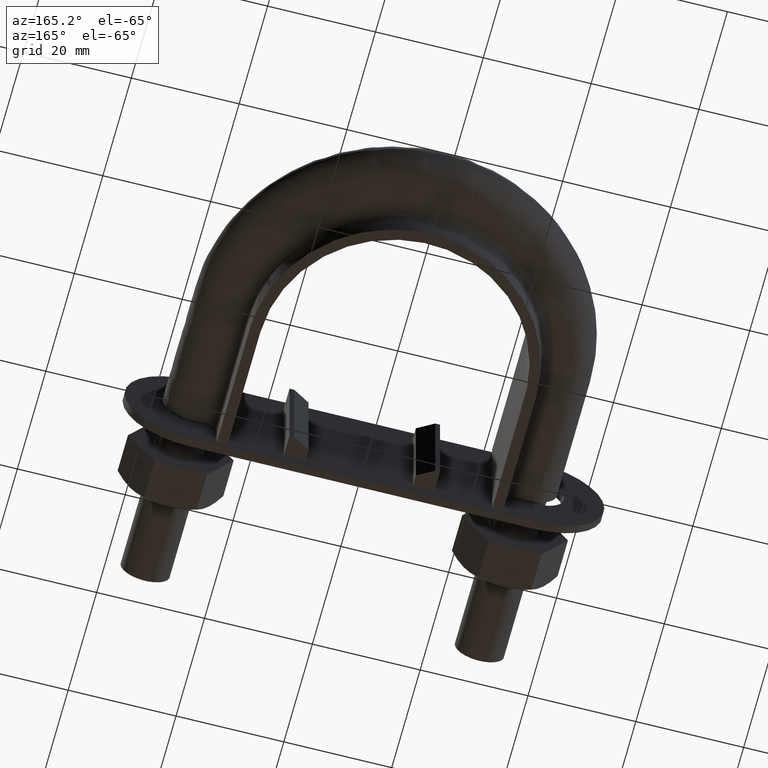
[diagram: clean part render]
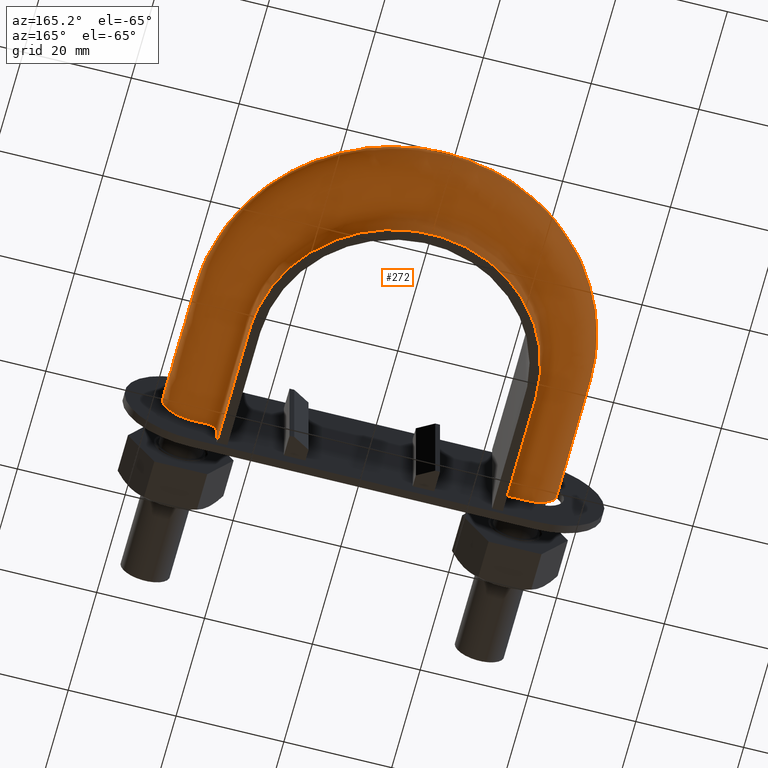
[diagram: same view with one face highlighted and labeled with its STEP entity id]
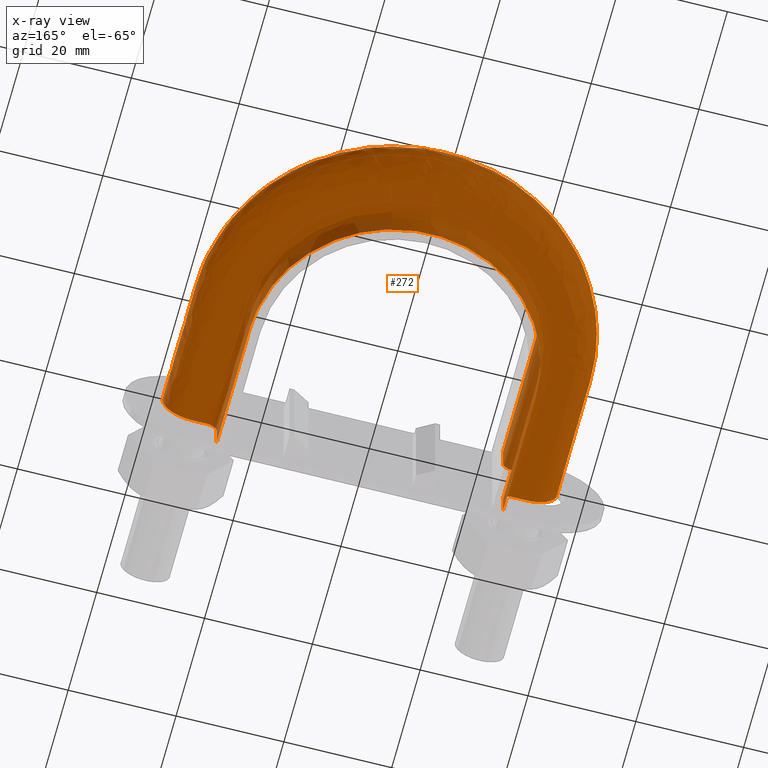
[diagram: x-ray of the same camera — body ghosted, the highlighted face saturated]
A machine part, auxiliary view. The second image highlights one B-rep face of the part: STEP entity #272.
The next image is the same camera in x-ray: the body ghosted, the highlighted face saturated — about 3% of this face is hidden behind the body in this view.
In plain terms, the highlighted face is a freeform B-spline surface patch.
Its self-contained STEP definition (entity closure, byte-faithful):
#272 = ADVANCED_FACE( '', ( #393 ), #394, .F. );
#393 = FACE_OUTER_BOUND( '', #651, .T. );
#394 = B_SPLINE_SURFACE_WITH_KNOTS( '', 3, 3, ( ( #652, #653, #654, #655, #656, #657, #658, #659, #660, #661, #662, #663, #664, #665, #666, #667, #668 ), ( #669, #670, #671, #672, #673, #674, #675, #676, #677, #678, #679, #680, #681, #682, #683, #684, #685 ), ( #686, #687, #688, #689, #690, #691, #692, #693, #694, #695, #696, #697, #698, #699, #700, #701, #702 ), ( #703, #704, #705, #706, #707, #708, #709, #710, #711, #712, #713, #714, #715, #716, #717, #718, #719 ), ( #720, #721, #722, #723, #724, #725, #726, #727, #728, #729, #730, #731, #732, #733, #734, #735, #736 ), ( #737, #738, #739, #740, #741, #742, #743, #744, #745, #746, #747, #748, #749, #750, #751, #752, #753 ), ( #754, #755, #756, #757, #758, #759, #760, #761, #762, #763, #764, #765, #766, #767, #768, #769, #770 ), ( #771, #772, #773, #774, #775, #776, #777, #778, #779, #780, #781, #782, #783, #784, #785, #786, #787 ), ( #788, #789, #790, #791, #792, #793, #794, #795, #796, #797, #798, #799, #800, #801, #802, #803, #804 ), ( #805, #806, #807, #808, #809, #810, #811, #812, #813, #814, #815, #816, #817, #818, #819, #820, #821 ), ( #822, #823, #824, #825, #826, #827, #828, #829, #830, #831, #832, #833, #834, #835, #836, #837, #838 ), ( #839, #840, #841, #842, #843, #844, #845, #846, #847, #848, #849, #850, #851, #852, #853, #854, #855 ), ( #856, #857, #858, #859, #860, #861, #862, #863, #864, #865, #866, #867, #868, #869, #870, #871, #872 ), ( #873, #874, #875, #876, #877, #878, #879, #880, #881, #882, #883, #884, #885, #886, #887, #888, #889 ), ( #890, #891, #892, #893, #894, #895, #896, #897, #898, #899, #900, #901, #902, #903, #904, #905, #906 ), ( #907, #908, #909, #910, #911, #912, #913, #914, #915, #916, #917, #918, #919, #920, #921, #922, #923 ), ( #924, #925, #926, #927, #928, #929, #930, #931, #932, #933, #934, #935, #936, #937, #938, #939, #940 ), ( #941, #942, #943, #944, #945, #946, #947, #948, #949, #950, #951, #952, #953, #954, #955, #956, #957 ), ( #958, #959, #960, #961, #962, #963, #964, #965, #966, #967, #968, #969, #970, #971, #972, #973, #974 ), ( #975, #976, #977, #978, #979, #980, #981, #982, #983, #984, #985, #986, #987, #988, #989, #990, #991 ), ( #992, #993, #994, #995, #996, #997, #998, #999, #1000, #1001, #1002, #1003, #1004, #1005, #1006, #1007, #1008 ), ( #1009, #1010, #1011, #1012, #1013, #1014, #1015, #1016, #1017, #1018, #1019, #1020, #1021, #1022, #1023, #1024, #1025 ), ( #1026, #1027, #1028, #1029, #1030, #1031, #1032, #1033, #1034, #1035, #1036, #1037, #1038, #1039, #1040, #1041, #1042 ), ( #1043, #1044, #1045, #1046, #1047, #1048, #1049, #1050, #1051, #1052, #1053, #1054, #1055, #1056, #1057, #1058, #1059 ), ( #1060, #1061, #1062, #1063, #1064, #1065, #1066, #1067, #1068, #1069, #1070, #1071, #1072, #1073, #1074, #1075, #1076 ), ( #1077, #1078, #1079, #1080, #1081, #1082, #1083, #1084, #1085, #1086, #1087, #1088, #1089, #1090, #1091, #1092, #1093 ), ( #1094, #1095, #1096, #1097, #1098, #1099, #1100, #1101, #1102, #1103, #1104, #1105, #1106, #1107, #1108, #1109, #1110 ), ( #1111, #1112, #1113, #1114, #1115, #1116, #1117, #1118, #1119, #1120, #1121, #1122, #1123, #1124, #1125, #1126, #1127 ), ( #1128, #1129, #1130, #1131, #1132, #1133, #1134, #1135, #1136, #1137, #1138, #1139, #1140, #1141, #1142, #1143, #1144 ), ( #1145, #1146, #1147, #1148, #1149, #1150, #1151, #1152, #1153, #1154, #1155, #1156, #1157, #1158, #1159, #1160, #1161 ), ( #1162, #1163, #1164, #1165, #1166, #1167, #1168, #1169, #1170, #1171, #1172, #1173, #1174, #1175, #1176, #1177, #1178 ) ), .UNSPECIFIED., .F., .F., .F., ( 4, 3, 1, 1, 1, 3, 3, 1, 1, 1, 3, 3, 1, 1, 1, 3, 4 ), ( 4, 3, 1, 1, 1, 1, 1, 1, 1, 3, 4 ), ( 0.000000000000000, 0.0526315789473684, 0.105263157894737, 0.157894736842105, 0.210526315789474, 0.263157894736842, 0.315789473684211, 0.368421052631579, 0.421052631578947, 0.473684210526316, 0.526315789473684, 0.578947368421053, 0.631578947368421, 0.684210526315789, 0.736842105263158, 0.789473684210526, 0.842105263157895 ), ( 0.000000000000000, 1.00000000000000, 1.50000000000000, 2.00000000000000, 3.00000000000000, 4.00000000000000, 5.00000000000000, 6.00000000000000, 6.50000000000000, 7.00000000000000, 8.00000000000000 ), .UNSPECIFIED. );
#651 = EDGE_LOOP( '', ( #1772, #1773, #1774, #1775 ) );
#652 = CARTESIAN_POINT( '', ( -26.5500000000000, 29.3500000000000, 12.5000000000000 ) );
#653 = CARTESIAN_POINT( '', ( -26.5500000000000, 38.3833333333333, 12.5000000000000 ) );
#654 = CARTESIAN_POINT( '', ( -26.5500000000000, 47.4166666666667, 12.5000000000000 ) );
#655 = CARTESIAN_POINT( '', ( -26.5500000000000, 56.4500000000000, 12.5000000000000 ) );
#656 = CARTESIAN_POINT( '', ( -26.5500000000000, 58.7566352991258, 12.5000000000000 ) );
#657 = CARTESIAN_POINT( '', ( -25.9278217826460, 63.4015410955847, 12.5000000000000 ) );
#658 = CARTESIAN_POINT( '', ( -22.3733615438456, 72.0387447403505, 12.5000000000000 ) );
#659 = CARTESIAN_POINT( '', ( -13.8952542493119, 80.5185918589213, 12.5000000000000 ) );
#660 = CARTESIAN_POINT( '', ( 1.76887449184267E-014, 84.2407040705393, 12.5000000000000 ) );
#661 = CARTESIAN_POINT( '', ( 13.8952542493119, 80.5185918589213, 12.5000000000000 ) );
#662 = CARTESIAN_POINT( '', ( 22.3733615438457, 72.0387447403505, 12.5000000000000 ) );
#663 = CARTESIAN_POINT( '', ( 25.9278217826460, 63.4015410955847, 12.5000000000000 ) );
#664 = CARTESIAN_POINT( '', ( 26.5500000000000, 58.7566352991258, 12.5000000000000 ) );
#665 = CARTESIAN_POINT( '', ( 26.5500000000000, 56.4500000000000, 12.5000000000000 ) );
#666 = CARTESIAN_POINT( '', ( 26.5500000000000, 47.4166666666667, 12.5000000000000 ) );
#667 = CARTESIAN_POINT( '', ( 26.5500000000000, 38.3833333333333, 12.5000000000000 ) );
#668 = CARTESIAN_POINT( '', ( 26.5500000000000, 29.3500000000000, 12.5000000000000 ) );
#669 = CARTESIAN_POINT( '', ( -26.5500000000000, 29.3500000000000, 10.8666666666667 ) );
#670 = CARTESIAN_POINT( '', ( -26.5500000000000, 38.3833333333333, 10.8666666666667 ) );
#671 = CARTESIAN_POINT( '', ( -26.5500000000000, 47.4166666666667, 10.8666666666667 ) );
#672 = CARTESIAN_POINT( '', ( -26.5500000000000, 56.4500000000000, 10.8666666666667 ) );
#673 = CARTESIAN_POINT( '', ( -26.5500000000000, 58.7566352991258, 10.8666666666667 ) );
#674 = CARTESIAN_POINT( '', ( -25.9278217826460, 63.4015410955847, 10.8666666666667 ) );
#675 = CARTESIAN_POINT( '', ( -22.3733615438456, 72.0387447403505, 10.8666666666667 ) );
#676 = CARTESIAN_POINT( '', ( -13.8952542493119, 80.5185918589213, 10.8666666666667 ) );
#677 = CARTESIAN_POINT( '', ( 1.94234683944035E-014, 84.2407040705393, 10.8666666666667 ) );
#678 = CARTESIAN_POINT( '', ( 13.8952542493119, 80.5185918589213, 10.8666666666667 ) );
#679 = CARTESIAN_POINT( '', ( 22.3733615438457, 72.0387447403505, 10.8666666666667 ) );
#680 = CARTESIAN_POINT( '', ( 25.9278217826460, 63.4015410955847, 10.8666666666667 ) );
#681 = CARTESIAN_POINT( '', ( 26.5500000000000, 58.7566352991258, 10.8666666666667 ) );
#682 = CARTESIAN_POINT( '', ( 26.5500000000000, 56.4500000000000, 10.8666666666667 ) );
#683 = CARTESIAN_POINT( '', ( 26.5500000000000, 47.4166666666667, 10.8666666666667 ) );
#684 = CARTESIAN_POINT( '', ( 26.5500000000000, 38.3833333333333, 10.8666666666667 ) );
#685 = CARTESIAN_POINT( '', ( 26.5500000000000, 29.3500000000000, 10.8666666666667 ) );
#686 = CARTESIAN_POINT( '', ( -26.5500000000000, 29.3500000000000, 9.23333333333333 ) );
#687 = CARTESIAN_POINT( '', ( -26.5500000000000, 38.3833333333333, 9.23333333333333 ) );
#688 = CARTESIAN_POINT( '', ( -26.5500000000000, 47.4166666666667, 9.23333333333333 ) );
#689 = CARTESIAN_POINT( '', ( -26.5500000000000, 56.4500000000000, 9.23333333333333 ) );
#690 = CARTESIAN_POINT( '', ( -26.5500000000000, 58.7566352991258, 9.23333333333333 ) );
#691 = CARTESIAN_POINT( '', ( -25.9278217826460, 63.4015410955847, 9.23333333333332 ) );
#692 = CARTESIAN_POINT( '', ( -22.3733615438456, 72.0387447403505, 9.23333333333335 ) );
#693 = CARTESIAN_POINT( '', ( -13.8952542493119, 80.5185918589213, 9.23333333333332 ) );
#694 = CARTESIAN_POINT( '', ( 1.89897875254093E-014, 84.2407040705393, 9.23333333333334 ) );
#695 = CARTESIAN_POINT( '', ( 13.8952542493119, 80.5185918589213, 9.23333333333332 ) );
#696 = CARTESIAN_POINT( '', ( 22.3733615438457, 72.0387447403505, 9.23333333333334 ) );
#697 = CARTESIAN_POINT( '', ( 25.9278217826460, 63.4015410955847, 9.23333333333333 ) );
#698 = CARTESIAN_POINT( '', ( 26.5500000000000, 58.7566352991258, 9.23333333333333 ) );
#699 = CARTESIAN_POINT( '', ( 26.5500000000000, 56.4500000000000, 9.23333333333333 ) );
#700 = CARTESIAN_POINT( '', ( 26.5500000000000, 47.4166666666667, 9.23333333333333 ) );
#701 = CARTESIAN_POINT( '', ( 26.5500000000000, 38.3833333333333, 9.23333333333333 ) );
#702 = CARTESIAN_POINT( '', ( 26.5500000000000, 29.3500000000000, 9.23333333333333 ) );
#703 = CARTESIAN_POINT( '', ( -26.5500000000000, 29.3500000000000, 7.59999999999999 ) );
#704 = CARTESIAN_POINT( '', ( -26.5500000000000, 38.3833333333333, 7.59999999999999 ) );
#705 = CARTESIAN_POINT( '', ( -26.5500000000000, 47.4166666666667, 7.59999999999999 ) );
#706 = CARTESIAN_POINT( '', ( -26.5500000000000, 56.4500000000000, 7.59999999999999 ) );
#707 = CARTESIAN_POINT( '', ( -26.5500000000000, 58.7566352991258, 7.60000000000000 ) );
#708 = CARTESIAN_POINT( '', ( -25.9278217826459, 63.4015410955847, 7.59999999999998 ) );
#709 = CARTESIAN_POINT( '', ( -22.3733615438456, 72.0387447403505, 7.60000000000001 ) );
#710 = CARTESIAN_POINT( '', ( -13.8952542493119, 80.5185918589213, 7.59999999999999 ) );
#711 = CARTESIAN_POINT( '', ( 1.98571492633977E-014, 84.2407040705393, 7.60000000000000 ) );
#712 = CARTESIAN_POINT( '', ( 13.8952542493119, 80.5185918589213, 7.59999999999999 ) );
#713 = CARTESIAN_POINT( '', ( 22.3733615438457, 72.0387447403505, 7.60000000000000 ) );
#714 = CARTESIAN_POINT( '', ( 25.9278217826460, 63.4015410955847, 7.59999999999999 ) );
#715 = CARTESIAN_POINT( '', ( 26.5500000000000, 58.7566352991258, 7.60000000000000 ) );
#716 = CARTESIAN_POINT( '', ( 26.5500000000000, 56.4500000000000, 7.60000000000000 ) );
#717 = CARTESIAN_POINT( '', ( 26.5500000000000, 47.4166666666667, 7.59999999999999 ) );
#718 = CARTESIAN_POINT( '', ( 26.5500000000000, 38.3833333333333, 7.59999999999999 ) );
#719 = CARTESIAN_POINT( '', ( 26.5500000000000, 29.3500000000000, 7.59999999999999 ) );
#720 = CARTESIAN_POINT( '', ( -26.5500000000000, 29.3500000000000, 7.33823584172332 ) );
#721 = CARTESIAN_POINT( '', ( -26.5500000000000, 38.3833333333333, 7.33823584172332 ) );
#722 = CARTESIAN_POINT( '', ( -26.5500000000000, 47.4166666666667, 7.33823584172332 ) );
#723 = CARTESIAN_POINT( '', ( -26.5500000000000, 56.4500000000000, 7.33823584172332 ) );
#724 = CARTESIAN_POINT( '', ( -26.5500000000000, 58.7566352991258, 7.33823584172333 ) );
#725 = CARTESIAN_POINT( '', ( -25.9278217826460, 63.4015410955847, 7.33823584172332 ) );
#726 = CARTESIAN_POINT( '', ( -22.3733615438456, 72.0387447403505, 7.33823584172334 ) );
#727 = CARTESIAN_POINT( '', ( -13.8952542493119, 80.5185918589213, 7.33823584172332 ) );
#728 = CARTESIAN_POINT( '', ( 1.76887449184267E-014, 84.2407040705393, 7.33823584172333 ) );
#729 = CARTESIAN_POINT( '', ( 13.8952542493119, 80.5185918589213, 7.33823584172332 ) );
#730 = CARTESIAN_POINT( '', ( 22.3733615438457, 72.0387447403505, 7.33823584172333 ) );
#731 = CARTESIAN_POINT( '', ( 25.9278217826460, 63.4015410955847, 7.33823584172332 ) );
#732 = CARTESIAN_POINT( '', ( 26.5500000000000, 58.7566352991258, 7.33823584172333 ) );
#733 = CARTESIAN_POINT( '', ( 26.5500000000000, 56.4500000000000, 7.33823584172333 ) );
#734 = CARTESIAN_POINT( '', ( 26.5500000000000, 47.4166666666667, 7.33823584172332 ) );
#735 = CARTESIAN_POINT( '', ( 26.5500000000000, 38.3833333333333, 7.33823584172332 ) );
#736 = CARTESIAN_POINT( '', ( 26.5500000000000, 29.3500000000000, 7.33823584172332 ) );
#737 = CARTESIAN_POINT( '', ( -26.6541362568359, 29.3500000000000, 6.81470752517000 ) );
#738 = CARTESIAN_POINT( '', ( -26.6541362568359, 38.3833333333333, 6.81470752517000 ) );
#739 = CARTESIAN_POINT( '', ( -26.6541362568359, 47.4166666666667, 6.81470752517000 ) );
#740 = CARTESIAN_POINT( '', ( -26.6541362568359, 56.4500000000000, 6.81470752517000 ) );
#741 = CARTESIAN_POINT( '', ( -26.6541362568359, 58.7659363744331, 6.81470752517000 ) );
#742 = CARTESIAN_POINT( '', ( -26.0295621710036, 63.4287040133886, 6.81470752516999 ) );
#743 = CARTESIAN_POINT( '', ( -22.4610902878325, 72.0999475731550, 6.81470752517001 ) );
#744 = CARTESIAN_POINT( '', ( -13.9497632697654, 80.6129737009305, 6.81470752516999 ) );
#745 = CARTESIAN_POINT( '', ( 1.98704991214949E-014, 84.3497175347886, 6.81470752517001 ) );
#746 = CARTESIAN_POINT( '', ( 13.9497632697655, 80.6129737009305, 6.81470752516999 ) );
#747 = CARTESIAN_POINT( '', ( 22.4610902878326, 72.0999475731550, 6.81470752517000 ) );
#748 = CARTESIAN_POINT( '', ( 26.0295621710036, 63.4287040133886, 6.81470752516999 ) );
#749 = CARTESIAN_POINT( '', ( 26.6541362568359, 58.7659363744331, 6.81470752517000 ) );
#750 = CARTESIAN_POINT( '', ( 26.6541362568359, 56.4500000000000, 6.81470752517000 ) );
#751 = CARTESIAN_POINT( '', ( 26.6541362568359, 47.4166666666667, 6.81470752517000 ) );
#752 = CARTESIAN_POINT( '', ( 26.6541362568359, 38.3833333333333, 6.81470752517000 ) );
#753 = CARTESIAN_POINT( '', ( 26.6541362568359, 29.3500000000000, 6.81470752517000 ) );
#754 = CARTESIAN_POINT( '', ( -27.0989687109389, 29.3500000000000, 6.14896871093887 ) );
#755 = CARTESIAN_POINT( '', ( -27.0989687109389, 38.3833333333333, 6.14896871093887 ) );
#756 = CARTESIAN_POINT( '', ( -27.0989687109389, 47.4166666666667, 6.14896871093887 ) );
#757 = CARTESIAN_POINT( '', ( -27.0989687109389, 56.4500000000000, 6.14896871093887 ) );
#758 = CARTESIAN_POINT( '', ( -27.0989687109389, 58.8056672067145, 6.14896871093887 ) );
#759 = CARTESIAN_POINT( '', ( -26.4641603408403, 63.5447341815013, 6.14896871093886 ) );
#760 = CARTESIAN_POINT( '', ( -22.8358357767600, 72.3613839560413, 6.14896871093888 ) );
#761 = CARTESIAN_POINT( '', ( -14.1826061054485, 81.0161388201631, 6.14896871093886 ) );
#762 = CARTESIAN_POINT( '', ( 1.99275248906145E-014, 84.8153836563267, 6.14896871093887 ) );
#763 = CARTESIAN_POINT( '', ( 14.1826061054486, 81.0161388201631, 6.14896871093886 ) );
#764 = CARTESIAN_POINT( '', ( 22.8358357767601, 72.3613839560413, 6.14896871093887 ) );
#765 = CARTESIAN_POINT( '', ( 26.4641603408403, 63.5447341815013, 6.14896871093886 ) );
#766 = CARTESIAN_POINT( '', ( 27.0989687109389, 58.8056672067145, 6.14896871093887 ) );
#767 = CARTESIAN_POINT( '', ( 27.0989687109389, 56.4500000000000, 6.14896871093887 ) );
#768 = CARTESIAN_POINT( '', ( 27.0989687109389, 47.4166666666666, 6.14896871093887 ) );
#769 = CARTESIAN_POINT( '', ( 27.0989687109389, 38.3833333333333, 6.14896871093887 ) );
#770 = CARTESIAN_POINT( '', ( 27.0989687109389, 29.3500000000000, 6.14896871093887 ) );
#771 = CARTESIAN_POINT( '', ( -27.7647075251700, 29.3500000000000, 5.70413625683590 ) );
#772 = CARTESIAN_POINT( '', ( -27.7647075251700, 38.3833333333333, 5.70413625683590 ) );
#773 = CARTESIAN_POINT( '', ( -27.7647075251700, 47.4166666666667, 5.70413625683590 ) );
#774 = CARTESIAN_POINT( '', ( -27.7647075251700, 56.4500000000000, 5.70413625683590 ) );
#775 = CARTESIAN_POINT( '', ( -27.7647075251700, 58.8651285992622, 5.70413625683590 ) );
#776 = CARTESIAN_POINT( '', ( -27.1145824662617, 63.7183855997418, 5.70413625683589 ) );
#777 = CARTESIAN_POINT( '', ( -23.3966820350219, 72.7526511532393, 5.70413625683591 ) );
#778 = CARTESIAN_POINT( '', ( -14.5310800351273, 81.6195180609124, 5.70413625683589 ) );
#779 = CARTESIAN_POINT( '', ( 2.00128699852992E-014, 85.5123022572988, 5.70413625683590 ) );
#780 = CARTESIAN_POINT( '', ( 14.5310800351273, 81.6195180609124, 5.70413625683589 ) );
#781 = CARTESIAN_POINT( '', ( 23.3966820350219, 72.7526511532393, 5.70413625683590 ) );
#782 = CARTESIAN_POINT( '', ( 27.1145824662618, 63.7183855997417, 5.70413625683589 ) );
#783 = CARTESIAN_POINT( '', ( 27.7647075251700, 58.8651285992622, 5.70413625683590 ) );
#784 = CARTESIAN_POINT( '', ( 27.7647075251700, 56.4500000000000, 5.70413625683590 ) );
#785 = CARTESIAN_POINT( '', ( 27.7647075251700, 47.4166666666666, 5.70413625683590 ) );
#786 = CARTESIAN_POINT( '', ( 27.7647075251700, 38.3833333333333, 5.70413625683590 ) );
#787 = CARTESIAN_POINT( '', ( 27.7647075251700, 29.3500000000000, 5.70413625683590 ) );
#788 = CARTESIAN_POINT( '', ( -28.2882358417233, 29.3500000000000, 5.59999999999999 ) );
#789 = CARTESIAN_POINT( '', ( -28.2882358417233, 38.3833333333333, 5.59999999999999 ) );
#790 = CARTESIAN_POINT( '', ( -28.2882358417233, 47.4166666666667, 5.59999999999999 ) );
#791 = CARTESIAN_POINT( '', ( -28.2882358417233, 56.4500000000000, 5.59999999999999 ) );
#792 = CARTESIAN_POINT( '', ( -28.2882358417233, 58.9118882624740, 5.59999999999999 ) );
#793 = CARTESIAN_POINT( '', ( -27.6260659385964, 63.8549428091386, 5.59999999999998 ) );
#794 = CARTESIAN_POINT( '', ( -23.8377242142617, 73.0603385716275, 5.60000000000000 ) );
#795 = CARTESIAN_POINT( '', ( -14.8051153863305, 82.0940076225846, 5.59999999999998 ) );
#796 = CARTESIAN_POINT( '', ( 2.26820694680907E-014, 86.0603499512927, 5.60000000000000 ) );
#797 = CARTESIAN_POINT( '', ( 14.8051153863305, 82.0940076225846, 5.59999999999998 ) );
#798 = CARTESIAN_POINT( '', ( 23.8377242142617, 73.0603385716275, 5.59999999999999 ) );
#799 = CARTESIAN_POINT( '', ( 27.6260659385964, 63.8549428091385, 5.59999999999999 ) );
#800 = CARTESIAN_POINT( '', ( 28.2882358417233, 58.9118882624740, 5.59999999999999 ) );
#801 = CARTESIAN_POINT( '', ( 28.2882358417233, 56.4500000000000, 5.59999999999999 ) );
#802 = CARTESIAN_POINT( '', ( 28.2882358417233, 47.4166666666666, 5.59999999999999 ) );
#803 = CARTESIAN_POINT( '', ( 28.2882358417233, 38.3833333333333, 5.59999999999999 ) );
#804 = CARTESIAN_POINT( '', ( 28.2882358417233, 29.3500000000000, 5.59999999999999 ) );
#805 = CARTESIAN_POINT( '', ( -28.5500000000000, 29.3500000000000, 5.59999999999999 ) );
#806 = CARTESIAN_POINT( '', ( -28.5500000000000, 38.3833333333333, 5.59999999999999 ) );
#807 = CARTESIAN_POINT( '', ( -28.5500000000000, 47.4166666666667, 5.59999999999999 ) );
#808 = CARTESIAN_POINT( '', ( -28.5500000000000, 56.4500000000000, 5.59999999999999 ) );
#809 = CARTESIAN_POINT( '', ( -28.5500000000000, 58.9352680940799, 5.59999999999999 ) );
#810 = CARTESIAN_POINT( '', ( -27.8818076747638, 63.9232214138370, 5.59999999999998 ) );
#811 = CARTESIAN_POINT( '', ( -24.0582453038816, 73.2141822808216, 5.60000000000000 ) );
#812 = CARTESIAN_POINT( '', ( -14.9421330619321, 82.3312524034207, 5.59999999999998 ) );
#813 = CARTESIAN_POINT( '', ( 2.01135413885386E-014, 86.3343737982896, 5.60000000000000 ) );
#814 = CARTESIAN_POINT( '', ( 14.9421330619321, 82.3312524034207, 5.59999999999998 ) );
#815 = CARTESIAN_POINT( '', ( 24.0582453038817, 73.2141822808216, 5.59999999999999 ) );
#816 = CARTESIAN_POINT( '', ( 27.8818076747638, 63.9232214138369, 5.59999999999999 ) );
#817 = CARTESIAN_POINT( '', ( 28.5500000000000, 58.9352680940799, 5.59999999999999 ) );
#818 = CARTESIAN_POINT( '', ( 28.5500000000000, 56.4500000000000, 5.59999999999999 ) );
#819 = CARTESIAN_POINT( '', ( 28.5500000000000, 47.4166666666666, 5.59999999999999 ) );
#820 = CARTESIAN_POINT( '', ( 28.5500000000000, 38.3833333333333, 5.59999999999999 ) );
#821 = CARTESIAN_POINT( '', ( 28.5500000000000, 29.3500000000000, 5.59999999999999 ) );
#822 = CARTESIAN_POINT( '', ( -29.3666666666667, 29.3500000000000, 5.60000000000001 ) );
#823 = CARTESIAN_POINT( '', ( -29.3666666666667, 38.3833333333333, 5.60000000000001 ) );
#824 = CARTESIAN_POINT( '', ( -29.3666666666667, 47.4166666666667, 5.60000000000001 ) );
#825 = CARTESIAN_POINT( '', ( -29.3666666666667, 56.4500000000000, 5.60000000000001 ) );
#826 = CARTESIAN_POINT( '', ( -29.3666666666667, 59.0082098186861, 5.60000000000001 ) );
#827 = CARTESIAN_POINT( '', ( -28.6796852473785, 64.1362408771233, 5.60000000000000 ) );
#828 = CARTESIAN_POINT( '', ( -24.7462395058963, 73.6941526098473, 5.60000000000002 ) );
#829 = CARTESIAN_POINT( '', ( -15.3696085770854, 83.0714221257580, 5.60000000000000 ) );
#830 = CARTESIAN_POINT( '', ( 1.76161496256726E-014, 87.1892889371210, 5.60000000000001 ) );
#831 = CARTESIAN_POINT( '', ( 15.3696085770854, 83.0714221257580, 5.60000000000000 ) );
#832 = CARTESIAN_POINT( '', ( 24.7462395058964, 73.6941526098472, 5.60000000000001 ) );
#833 = CARTESIAN_POINT( '', ( 28.6796852473786, 64.1362408771233, 5.60000000000000 ) );
#834 = CARTESIAN_POINT( '', ( 29.3666666666667, 59.0082098186861, 5.60000000000001 ) );
#835 = CARTESIAN_POINT( '', ( 29.3666666666667, 56.4500000000000, 5.60000000000001 ) );
#836 = CARTESIAN_POINT( '', ( 29.3666666666667, 47.4166666666666, 5.60000000000001 ) );
#837 = CARTESIAN_POINT( '', ( 29.3666666666667, 38.3833333333333, 5.60000000000001 ) );
#838 = CARTESIAN_POINT( '', ( 29.3666666666667, 29.3500000000000, 5.60000000000001 ) );
#839 = CARTESIAN_POINT( '', ( -30.1833333333333, 29.3500000000000, 5.60000000000001 ) );
#840 = CARTESIAN_POINT( '', ( -30.1833333333333, 38.3833333333333, 5.60000000000001 ) );
#841 = CARTESIAN_POINT( '', ( -30.1833333333333, 47.4166666666667, 5.60000000000001 ) );
#842 = CARTESIAN_POINT( '', ( -30.1833333333333, 56.4500000000000, 5.60000000000001 ) );
#843 = CARTESIAN_POINT( '', ( -30.1833333333333, 59.0811515432924, 5.60000000000001 ) );
#844 = CARTESIAN_POINT( '', ( -29.4775628199933, 64.3492603404096, 5.60000000000000 ) );
#845 = CARTESIAN_POINT( '', ( -25.4342337079110, 74.1741229388729, 5.60000000000002 ) );
#846 = CARTESIAN_POINT( '', ( -15.7970840922386, 83.8115918480952, 5.60000000000000 ) );
#847 = CARTESIAN_POINT( '', ( 1.77208430767718E-014, 88.0442040759524, 5.60000000000001 ) );
#848 = CARTESIAN_POINT( '', ( 15.7970840922386, 83.8115918480952, 5.60000000000000 ) );
#849 = CARTESIAN_POINT( '', ( 25.4342337079110, 74.1741229388729, 5.60000000000001 ) );
#850 = CARTESIAN_POINT( '', ( 29.4775628199934, 64.3492603404096, 5.60000000000000 ) );
#851 = CARTESIAN_POINT( '', ( 30.1833333333333, 59.0811515432924, 5.60000000000001 ) );
#852 = CARTESIAN_POINT( '', ( 30.1833333333334, 56.4500000000000, 5.60000000000001 ) );
#853 = CARTESIAN_POINT( '', ( 30.1833333333333, 47.4166666666666, 5.60000000000001 ) );
#854 = CARTESIAN_POINT( '', ( 30.1833333333333, 38.3833333333333, 5.60000000000001 ) );
#855 = CARTESIAN_POINT( '', ( 30.1833333333333, 29.3500000000000, 5.60000000000001 ) );
#856 = CARTESIAN_POINT( '', ( -31.0000000000000, 29.3500000000000, 5.60000000000001 ) );
#857 = CARTESIAN_POINT( '', ( -31.0000000000000, 38.3833333333333, 5.60000000000001 ) );
#858 = CARTESIAN_POINT( '', ( -31.0000000000000, 47.4166666666667, 5.60000000000001 ) );
#859 = CARTESIAN_POINT( '', ( -31.0000000000000, 56.4500000000000, 5.60000000000001 ) );
#860 = CARTESIAN_POINT( '', ( -31.0000000000000, 59.1540932678986, 5.60000000000001 ) );
#861 = CARTESIAN_POINT( '', ( -30.2754403926081, 64.5622798036959, 5.60000000000000 ) );
#862 = CARTESIAN_POINT( '', ( -26.1222279099257, 74.6540932678986, 5.60000000000002 ) );
#863 = CARTESIAN_POINT( '', ( -16.2245596073919, 84.5517615704325, 5.60000000000000 ) );
#864 = CARTESIAN_POINT( '', ( 1.69581747898825E-014, 88.8991192147837, 5.60000000000001 ) );
#865 = CARTESIAN_POINT( '', ( 16.2245596073919, 84.5517615704325, 5.60000000000000 ) );
#866 = CARTESIAN_POINT( '', ( 26.1222279099257, 74.6540932678986, 5.60000000000001 ) );
#867 = CARTESIAN_POINT( '', ( 30.2754403926081, 64.5622798036959, 5.60000000000000 ) );
#868 = CARTESIAN_POINT( '', ( 31.0000000000000, 59.1540932678986, 5.60000000000001 ) );
#869 = CARTESIAN_POINT( '', ( 31.0000000000000, 56.4500000000000, 5.60000000000001 ) );
#870 = CARTESIAN_POINT( '', ( 31.0000000000000, 47.4166666666666, 5.60000000000001 ) );
#871 = CARTESIAN_POINT( '', ( 31.0000000000000, 38.3833333333333, 5.60000000000001 ) );
#872 = CARTESIAN_POINT( '', ( 31.0000000000000, 29.3500000000000, 5.60000000000001 ) );
#873 = CARTESIAN_POINT( '', ( -32.4627416997969, 29.3500000000000, 5.60000000000001 ) );
#874 = CARTESIAN_POINT( '', ( -32.4627416997969, 38.3833333333333, 5.60000000000001 ) );
#875 = CARTESIAN_POINT( '', ( -32.4627416997969, 47.4166666666667, 5.60000000000001 ) );
#876 = CARTESIAN_POINT( '', ( -32.4627416997969, 56.4500000000000, 5.60000000000001 ) );
#877 = CARTESIAN_POINT( '', ( -32.4627416997969, 59.2847400869640, 5.60000000000001 ) );
#878 = CARTESIAN_POINT( '', ( -31.7045287152159, 64.9438215814314, 5.60000000000000 ) );
#879 = CARTESIAN_POINT( '', ( -27.3545027774834, 75.5137740208755, 5.60000000000002 ) );
#880 = CARTESIAN_POINT( '', ( -16.9902162543186, 85.8774886534404, 5.60000000000000 ) );
#881 = CARTESIAN_POINT( '', ( 1.80130542543425E-014, 90.4303682229752, 5.60000000000002 ) );
#882 = CARTESIAN_POINT( '', ( 16.9902162543186, 85.8774886534404, 5.60000000000000 ) );
#883 = CARTESIAN_POINT( '', ( 27.3545027774834, 75.5137740208755, 5.60000000000001 ) );
#884 = CARTESIAN_POINT( '', ( 31.7045287152160, 64.9438215814314, 5.60000000000001 ) );
#885 = CARTESIAN_POINT( '', ( 32.4627416997970, 59.2847400869639, 5.60000000000001 ) );
#886 = CARTESIAN_POINT( '', ( 32.4627416997970, 56.4500000000000, 5.60000000000001 ) );
#887 = CARTESIAN_POINT( '', ( 32.4627416997970, 47.4166666666666, 5.60000000000001 ) );
#888 = CARTESIAN_POINT( '', ( 32.4627416997970, 38.3833333333333, 5.60000000000001 ) );
#889 = CARTESIAN_POINT( '', ( 32.4627416997970, 29.3500000000000, 5.60000000000001 ) );
#890 = CARTESIAN_POINT( '', ( -35.3882250993908, 29.3500000000000, 4.38822509939087 ) );
#891 = CARTESIAN_POINT( '', ( -35.3882250993908, 38.3833333333333, 4.38822509939087 ) );
#892 = CARTESIAN_POINT( '', ( -35.3882250993908, 47.4166666666667, 4.38822509939087 ) );
#893 = CARTESIAN_POINT( '', ( -35.3882250993908, 56.4500000000000, 4.38822509939087 ) );
#894 = CARTESIAN_POINT( '', ( -35.3882250993908, 59.5460337250946, 4.38822509939087 ) );
#895 = CARTESIAN_POINT( '', ( -34.5627053604316, 65.7069051369022, 4.38822509939086 ) );
#896 = CARTESIAN_POINT( '', ( -29.8190525125987, 77.2331355268293, 4.38822509939087 ) );
#897 = CARTESIAN_POINT( '', ( -18.5215295481721, 88.5289428194563, 4.38822509939086 ) );
#898 = CARTESIAN_POINT( '', ( 1.57860044933204E-014, 93.4928662393581, 4.38822509939087 ) );
#899 = CARTESIAN_POINT( '', ( 18.5215295481721, 88.5289428194563, 4.38822509939086 ) );
#900 = CARTESIAN_POINT( '', ( 29.8190525125987, 77.2331355268293, 4.38822509939087 ) );
#901 = CARTESIAN_POINT( '', ( 34.5627053604317, 65.7069051369022, 4.38822509939086 ) );
#902 = CARTESIAN_POINT( '', ( 35.3882250993909, 59.5460337250945, 4.38822509939087 ) );
#903 = CARTESIAN_POINT( '', ( 35.3882250993909, 56.4500000000000, 4.38822509939087 ) );
#904 = CARTESIAN_POINT( '', ( 35.3882250993909, 47.4166666666666, 4.38822509939087 ) );
#905 = CARTESIAN_POINT( '', ( 35.3882250993909, 38.3833333333333, 4.38822509939087 ) );
#906 = CARTESIAN_POINT( '', ( 35.3882250993909, 29.3500000000000, 4.38822509939087 ) );
#907 = CARTESIAN_POINT( '', ( -37.2058874503046, 29.3500000000000, 9.94452457394278E-015 ) );
#908 = CARTESIAN_POINT( '', ( -37.2058874503046, 38.3833333333333, 9.94452457394278E-015 ) );
#909 = CARTESIAN_POINT( '', ( -37.2058874503046, 47.4166666666667, 9.94452457394278E-015 ) );
#910 = CARTESIAN_POINT( '', ( -37.2058874503046, 56.4500000000000, 9.94452457394278E-015 ) );
#911 = CARTESIAN_POINT( '', ( -37.2058874503046, 59.7083807781078, 9.94452457394278E-015 ) );
#912 = CARTESIAN_POINT( '', ( -36.3385486555912, 66.1810244737521, 9.94452457394277E-015 ) );
#913 = CARTESIAN_POINT( '', ( -31.3503274007403, 78.3014098084117, 9.94452457394280E-015 ) );
#914 = CARTESIAN_POINT( '', ( -19.4729656500066, 90.1763452328180, 9.94452457394277E-015 ) );
#915 = CARTESIAN_POINT( '', ( 1.51516599118016E-014, 95.3956585590478, 9.94452457394279E-015 ) );
#916 = CARTESIAN_POINT( '', ( 19.4729656500067, 90.1763452328180, 9.94452457394277E-015 ) );
#917 = CARTESIAN_POINT( '', ( 31.3503274007404, 78.3014098084117, 9.94452457394279E-015 ) );
#918 = CARTESIAN_POINT( '', ( 36.3385486555912, 66.1810244737521, 9.94452457394277E-015 ) );
#919 = CARTESIAN_POINT( '', ( 37.2058874503046, 59.7083807781078, 9.94452457394278E-015 ) );
#920 = CARTESIAN_POINT( '', ( 37.2058874503046, 56.4500000000000, 9.94452457394278E-015 ) );
#921 = CARTESIAN_POINT( '', ( 37.2058874503046, 47.4166666666666, 9.94452457394278E-015 ) );
#922 = CARTESIAN_POINT( '', ( 37.2058874503046, 38.3833333333333, 9.94452457394278E-015 ) );
#923 = CARTESIAN_POINT( '', ( 37.2058874503046, 29.3500000000000, 9.94452457394278E-015 ) );
#924 = CARTESIAN_POINT( '', ( -35.3882250993908, 29.3500000000000, -4.38822509939085 ) );
#925 = CARTESIAN_POINT( '', ( -35.3882250993908, 38.3833333333333, -4.38822509939085 ) );
#926 = CARTESIAN_POINT( '', ( -35.3882250993908, 47.4166666666667, -4.38822509939085 ) );
#927 = CARTESIAN_POINT( '', ( -35.3882250993908, 56.4500000000000, -4.38822509939085 ) );
#928 = CARTESIAN_POINT( '', ( -35.3882250993908, 59.5460337250946, -4.38822509939085 ) );
#929 = CARTESIAN_POINT( '', ( -34.5627053604316, 65.7069051369022, -4.38822509939084 ) );
#930 = CARTESIAN_POINT( '', ( -29.8190525125987, 77.2331355268293, -4.38822509939085 ) );
#931 = CARTESIAN_POINT( '', ( -18.5215295481721, 88.5289428194563, -4.38822509939084 ) );
#932 = CARTESIAN_POINT( '', ( 1.66533662313088E-014, 93.4928662393581, -4.38822509939085 ) );
#933 = CARTESIAN_POINT( '', ( 18.5215295481722, 88.5289428194563, -4.38822509939084 ) );
#934 = CARTESIAN_POINT( '', ( 29.8190525125987, 77.2331355268293, -4.38822509939085 ) );
#935 = CARTESIAN_POINT( '', ( 34.5627053604317, 65.7069051369022, -4.38822509939084 ) );
#936 = CARTESIAN_POINT( '', ( 35.3882250993909, 59.5460337250945, -4.38822509939085 ) );
#937 = CARTESIAN_POINT( '', ( 35.3882250993909, 56.4500000000000, -4.38822509939085 ) );
#938 = CARTESIAN_POINT( '', ( 35.3882250993909, 47.4166666666666, -4.38822509939085 ) );
#939 = CARTESIAN_POINT( '', ( 35.3882250993909, 38.3833333333333, -4.38822509939085 ) );
#940 = CARTESIAN_POINT( '', ( 35.3882250993909, 29.3500000000000, -4.38822509939085 ) );
#941 = CARTESIAN_POINT( '', ( -32.4627416997969, 29.3500000000000, -5.59999999999999 ) );
#942 = CARTESIAN_POINT( '', ( -32.4627416997969, 38.3833333333333, -5.59999999999999 ) );
#943 = CARTESIAN_POINT( '', ( -32.4627416997969, 47.4166666666667, -5.59999999999999 ) );
#944 = CARTESIAN_POINT( '', ( -32.4627416997969, 56.4500000000000, -5.59999999999999 ) );
#945 = CARTESIAN_POINT( '', ( -32.4627416997969, 59.2847400869640, -5.59999999999999 ) );
#946 = CARTESIAN_POINT( '', ( -31.7045287152159, 64.9438215814314, -5.59999999999998 ) );
#947 = CARTESIAN_POINT( '', ( -27.3545027774834, 75.5137740208755, -5.60000000000000 ) );
#948 = CARTESIAN_POINT( '', ( -16.9902162543186, 85.8774886534404, -5.59999999999998 ) );
#949 = CARTESIAN_POINT( '', ( 1.62783307783657E-014, 90.4303682229752, -5.60000000000000 ) );
#950 = CARTESIAN_POINT( '', ( 16.9902162543186, 85.8774886534404, -5.59999999999998 ) );
#951 = CARTESIAN_POINT( '', ( 27.3545027774834, 75.5137740208755, -5.59999999999999 ) );
#952 = CARTESIAN_POINT( '', ( 31.7045287152160, 64.9438215814314, -5.59999999999999 ) );
#953 = CARTESIAN_POINT( '', ( 32.4627416997970, 59.2847400869639, -5.59999999999999 ) );
#954 = CARTESIAN_POINT( '', ( 32.4627416997970, 56.4500000000000, -5.59999999999999 ) );
#955 = CARTESIAN_POINT( '', ( 32.4627416997970, 47.4166666666666, -5.59999999999999 ) );
#956 = CARTESIAN_POINT( '', ( 32.4627416997970, 38.3833333333333, -5.59999999999999 ) );
#957 = CARTESIAN_POINT( '', ( 32.4627416997970, 29.3500000000000, -5.59999999999999 ) );
#958 = CARTESIAN_POINT( '', ( -31.0000000000000, 29.3500000000000, -5.59999999999999 ) );
#959 = CARTESIAN_POINT( '', ( -31.0000000000000, 38.3833333333333, -5.59999999999999 ) );
#960 = CARTESIAN_POINT( '', ( -31.0000000000000, 47.4166666666667, -5.59999999999999 ) );
#961 = CARTESIAN_POINT( '', ( -31.0000000000000, 56.4500000000000, -5.59999999999999 ) );
#962 = CARTESIAN_POINT( '', ( -31.0000000000000, 59.1540932678986, -5.59999999999999 ) );
#963 = CARTESIAN_POINT( '', ( -30.2754403926081, 64.5622798036959, -5.59999999999998 ) );
#964 = CARTESIAN_POINT( '', ( -26.1222279099257, 74.6540932678986, -5.60000000000000 ) );
#965 = CARTESIAN_POINT( '', ( -16.2245596073919, 84.5517615704325, -5.59999999999999 ) );
#966 = CARTESIAN_POINT( '', ( 1.78255365278709E-014, 88.8991192147837, -5.60000000000000 ) );
#967 = CARTESIAN_POINT( '', ( 16.2245596073919, 84.5517615704325, -5.59999999999998 ) );
#968 = CARTESIAN_POINT( '', ( 26.1222279099257, 74.6540932678986, -5.59999999999999 ) );
#969 = CARTESIAN_POINT( '', ( 30.2754403926081, 64.5622798036959, -5.59999999999999 ) );
#970 = CARTESIAN_POINT( '', ( 31.0000000000000, 59.1540932678986, -5.59999999999999 ) );
#971 = CARTESIAN_POINT( '', ( 31.0000000000000, 56.4500000000000, -5.59999999999999 ) );
#972 = CARTESIAN_POINT( '', ( 31.0000000000000, 47.4166666666666, -5.59999999999999 ) );
#973 = CARTESIAN_POINT( '', ( 31.0000000000000, 38.3833333333333, -5.59999999999999 ) );
#974 = CARTESIAN_POINT( '', ( 31.0000000000000, 29.3500000000000, -5.59999999999999 ) );
#975 = CARTESIAN_POINT( '', ( -30.1833333333333, 29.3500000000000, -5.59999999999999 ) );
#976 = CARTESIAN_POINT( '', ( -30.1833333333333, 38.3833333333333, -5.59999999999999 ) );
#977 = CARTESIAN_POINT( '', ( -30.1833333333333, 47.4166666666667, -5.59999999999999 ) );
#978 = CARTESIAN_POINT( '', ( -30.1833333333333, 56.4500000000000, -5.59999999999999 ) );
#979 = CARTESIAN_POINT( '', ( -30.1833333333333, 59.0811515432924, -5.59999999999999 ) );
#980 = CARTESIAN_POINT( '', ( -29.4775628199933, 64.3492603404096, -5.59999999999998 ) );
#981 = CARTESIAN_POINT( '', ( -25.4342337079110, 74.1741229388729, -5.60000000000000 ) );
#982 = CARTESIAN_POINT( '', ( -15.7970840922386, 83.8115918480952, -5.59999999999998 ) );
#983 = CARTESIAN_POINT( '', ( 2.20576517667138E-014, 88.0442040759524, -5.59999999999999 ) );
#984 = CARTESIAN_POINT( '', ( 15.7970840922386, 83.8115918480952, -5.59999999999998 ) );
#985 = CARTESIAN_POINT( '', ( 25.4342337079111, 74.1741229388730, -5.59999999999999 ) );
#986 = CARTESIAN_POINT( '', ( 29.4775628199934, 64.3492603404096, -5.59999999999998 ) );
#987 = CARTESIAN_POINT( '', ( 30.1833333333334, 59.0811515432924, -5.59999999999999 ) );
#988 = CARTESIAN_POINT( '', ( 30.1833333333334, 56.4500000000000, -5.59999999999999 ) );
#989 = CARTESIAN_POINT( '', ( 30.1833333333334, 47.4166666666666, -5.59999999999999 ) );
#990 = CARTESIAN_POINT( '', ( 30.1833333333333, 38.3833333333333, -5.59999999999999 ) );
#991 = CARTESIAN_POINT( '', ( 30.1833333333333, 29.3500000000000, -5.59999999999999 ) );
#992 = CARTESIAN_POINT( '', ( -29.3666666666667, 29.3500000000000, -5.59999999999999 ) );
#993 = CARTESIAN_POINT( '', ( -29.3666666666667, 38.3833333333333, -5.59999999999999 ) );
#994 = CARTESIAN_POINT( '', ( -29.3666666666667, 47.4166666666667, -5.59999999999999 ) );
#995 = CARTESIAN_POINT( '', ( -29.3666666666667, 56.4500000000000, -5.59999999999999 ) );
#996 = CARTESIAN_POINT( '', ( -29.3666666666667, 59.0082098186862, -5.59999999999999 ) );
#997 = CARTESIAN_POINT( '', ( -28.6796852473786, 64.1362408771233, -5.59999999999998 ) );
#998 = CARTESIAN_POINT( '', ( -24.7462395058963, 73.6941526098473, -5.60000000000000 ) );
#999 = CARTESIAN_POINT( '', ( -15.3696085770854, 83.0714221257580, -5.59999999999998 ) );
#1000 = CARTESIAN_POINT( '', ( 2.19529583156146E-014, 87.1892889371210, -5.59999999999999 ) );
#1001 = CARTESIAN_POINT( '', ( 15.3696085770854, 83.0714221257580, -5.59999999999998 ) );
#1002 = CARTESIAN_POINT( '', ( 24.7462395058964, 73.6941526098473, -5.59999999999999 ) );
#1003 = CARTESIAN_POINT( '', ( 28.6796852473786, 64.1362408771233, -5.59999999999998 ) );
#1004 = CARTESIAN_POINT( '', ( 29.3666666666667, 59.0082098186861, -5.59999999999999 ) );
#1005 = CARTESIAN_POINT( '', ( 29.3666666666667, 56.4500000000000, -5.59999999999999 ) );
#1006 = CARTESIAN_POINT( '', ( 29.3666666666667, 47.4166666666666, -5.59999999999999 ) );
#1007 = CARTESIAN_POINT( '', ( 29.3666666666667, 38.3833333333333, -5.59999999999999 ) );
#1008 = CARTESIAN_POINT( '', ( 29.3666666666667, 29.3500000000000, -5.59999999999999 ) );
#1009 = CARTESIAN_POINT( '', ( -28.5500000000000, 29.3500000000000, -5.59999999999999 ) );
#1010 = CARTESIAN_POINT( '', ( -28.5500000000000, 38.3833333333333, -5.59999999999999 ) );
#1011 = CARTESIAN_POINT( '', ( -28.5500000000000, 47.4166666666667, -5.59999999999999 ) );
#1012 = CARTESIAN_POINT( '', ( -28.5500000000000, 56.4500000000000, -5.59999999999999 ) );
#1013 = CARTESIAN_POINT( '', ( -28.5500000000000, 58.9352680940799, -5.59999999999999 ) );
#1014 = CARTESIAN_POINT( '', ( -27.8818076747638, 63.9232214138370, -5.59999999999998 ) );
#1015 = CARTESIAN_POINT( '', ( -24.0582453038816, 73.2141822808216, -5.60000000000000 ) );
#1016 = CARTESIAN_POINT( '', ( -14.9421330619321, 82.3312524034208, -5.59999999999998 ) );
#1017 = CARTESIAN_POINT( '', ( 2.01135413885386E-014, 86.3343737982896, -5.59999999999999 ) );
#1018 = CARTESIAN_POINT( '', ( 14.9421330619321, 82.3312524034207, -5.59999999999998 ) );
#1019 = CARTESIAN_POINT( '', ( 24.0582453038817, 73.2141822808216, -5.59999999999999 ) );
#1020 = CARTESIAN_POINT( '', ( 27.8818076747638, 63.9232214138369, -5.59999999999998 ) );
#1021 = CARTESIAN_POINT( '', ( 28.5500000000000, 58.9352680940799, -5.59999999999999 ) );
#1022 = CARTESIAN_POINT( '', ( 28.5500000000000, 56.4500000000000, -5.59999999999999 ) );
#1023 = CARTESIAN_POINT( '', ( 28.5500000000000, 47.4166666666666, -5.59999999999999 ) );
#1024 = CARTESIAN_POINT( '', ( 28.5500000000000, 38.3833333333333, -5.59999999999999 ) );
#1025 = CARTESIAN_POINT( '', ( 28.5500000000000, 29.3500000000000, -5.59999999999999 ) );
#1026 = CARTESIAN_POINT( '', ( -28.2882358417233, 29.3500000000000, -5.59999999999999 ) );
#1027 = CARTESIAN_POINT( '', ( -28.2882358417233, 38.3833333333333, -5.59999999999999 ) );
#1028 = CARTESIAN_POINT( '', ( -28.2882358417233, 47.4166666666667, -5.59999999999999 ) );
#1029 = CARTESIAN_POINT( '', ( -28.2882358417233, 56.4500000000000, -5.59999999999999 ) );
#1030 = CARTESIAN_POINT( '', ( -28.2882358417233, 58.9118882624740, -5.59999999999999 ) );
#1031 = CARTESIAN_POINT( '', ( -27.6260659385964, 63.8549428091386, -5.59999999999998 ) );
#1032 = CARTESIAN_POINT( '', ( -23.8377242142617, 73.0603385716275, -5.60000000000000 ) );
#1033 = CARTESIAN_POINT( '', ( -14.8051153863305, 82.0940076225847, -5.59999999999998 ) );
#1034 = CARTESIAN_POINT( '', ( 2.52841546820559E-014, 86.0603499512927, -5.59999999999999 ) );
#1035 = CARTESIAN_POINT( '', ( 14.8051153863305, 82.0940076225846, -5.59999999999998 ) );
#1036 = CARTESIAN_POINT( '', ( 23.8377242142618, 73.0603385716275, -5.59999999999999 ) );
#1037 = CARTESIAN_POINT( '', ( 27.6260659385965, 63.8549428091385, -5.59999999999998 ) );
#1038 = CARTESIAN_POINT( '', ( 28.2882358417234, 58.9118882624740, -5.59999999999999 ) );
#1039 = CARTESIAN_POINT( '', ( 28.2882358417234, 56.4500000000000, -5.59999999999999 ) );
#1040 = CARTESIAN_POINT( '', ( 28.2882358417234, 47.4166666666666, -5.59999999999999 ) );
#1041 = CARTESIAN_POINT( '', ( 28.2882358417234, 38.3833333333333, -5.59999999999999 ) );
#1042 = CARTESIAN_POINT( '', ( 28.2882358417234, 29.3500000000000, -5.59999999999999 ) );
#1043 = CARTESIAN_POINT( '', ( -27.7647075251700, 29.3500000000000, -5.70413625683589 ) );
#1044 = CARTESIAN_POINT( '', ( -27.7647075251700, 38.3833333333333, -5.70413625683589 ) );
#1045 = CARTESIAN_POINT( '', ( -27.7647075251700, 47.4166666666667, -5.70413625683589 ) );
#1046 = CARTESIAN_POINT( '', ( -27.7647075251700, 56.4500000000000, -5.70413625683589 ) );
#1047 = CARTESIAN_POINT( '', ( -27.7647075251700, 58.8651285992622, -5.70413625683590 ) );
#1048 = CARTESIAN_POINT( '', ( -27.1145824662617, 63.7183855997418, -5.70413625683589 ) );
#1049 = CARTESIAN_POINT( '', ( -23.3966820350219, 72.7526511532393, -5.70413625683591 ) );
#1050 = CARTESIAN_POINT( '', ( -14.5310800351273, 81.6195180609124, -5.70413625683589 ) );
#1051 = CARTESIAN_POINT( '', ( 2.43496786752412E-014, 85.5123022572988, -5.70413625683590 ) );
#1052 = CARTESIAN_POINT( '', ( 14.5310800351273, 81.6195180609124, -5.70413625683589 ) );
#1053 = CARTESIAN_POINT( '', ( 23.3966820350219, 72.7526511532393, -5.70413625683590 ) );
#1054 = CARTESIAN_POINT( '', ( 27.1145824662618, 63.7183855997417, -5.70413625683589 ) );
#1055 = CARTESIAN_POINT( '', ( 27.7647075251700, 58.8651285992622, -5.70413625683590 ) );
#1056 = CARTESIAN_POINT( '', ( 27.7647075251700, 56.4500000000000, -5.70413625683590 ) );
#1057 = CARTESIAN_POINT( '', ( 27.7647075251700, 47.4166666666666, -5.70413625683589 ) );
#1058 = CARTESIAN_POINT( '', ( 27.7647075251700, 38.3833333333333, -5.70413625683589 ) );
#1059 = CARTESIAN_POINT( '', ( 27.7647075251700, 29.3500000000000, -5.70413625683589 ) );
#1060 = CARTESIAN_POINT( '', ( -27.0989687109389, 29.3500000000000, -6.14896871093886 ) );
#1061 = CARTESIAN_POINT( '', ( -27.0989687109389, 38.3833333333333, -6.14896871093886 ) );
#1062 = CARTESIAN_POINT( '', ( -27.0989687109389, 47.4166666666667, -6.14896871093886 ) );
#1063 = CARTESIAN_POINT( '', ( -27.0989687109389, 56.4500000000000, -6.14896871093886 ) );
#1064 = CARTESIAN_POINT( '', ( -27.0989687109389, 58.8056672067145, -6.14896871093886 ) );
#1065 = CARTESIAN_POINT( '', ( -26.4641603408403, 63.5447341815013, -6.14896871093886 ) );
#1066 = CARTESIAN_POINT( '', ( -22.8358357767600, 72.3613839560413, -6.14896871093888 ) );
#1067 = CARTESIAN_POINT( '', ( -14.1826061054486, 81.0161388201632, -6.14896871093886 ) );
#1068 = CARTESIAN_POINT( '', ( 2.46980144495507E-014, 84.8153836563267, -6.14896871093887 ) );
#1069 = CARTESIAN_POINT( '', ( 14.1826061054486, 81.0161388201631, -6.14896871093885 ) );
#1070 = CARTESIAN_POINT( '', ( 22.8358357767601, 72.3613839560413, -6.14896871093887 ) );
#1071 = CARTESIAN_POINT( '', ( 26.4641603408403, 63.5447341815013, -6.14896871093886 ) );
#1072 = CARTESIAN_POINT( '', ( 27.0989687109389, 58.8056672067145, -6.14896871093886 ) );
#1073 = CARTESIAN_POINT( '', ( 27.0989687109389, 56.4500000000000, -6.14896871093886 ) );
#1074 = CARTESIAN_POINT( '', ( 27.0989687109389, 47.4166666666666, -6.14896871093886 ) );
#1075 = CARTESIAN_POINT( '', ( 27.0989687109389, 38.3833333333333, -6.14896871093886 ) );
#1076 = CARTESIAN_POINT( '', ( 27.0989687109389, 29.3500000000000, -6.14896871093886 ) );
#1077 = CARTESIAN_POINT( '', ( -26.6541362568359, 29.3500000000000, -6.81470752516999 ) );
#1078 = CARTESIAN_POINT( '', ( -26.6541362568359, 38.3833333333333, -6.81470752516999 ) );
#1079 = CARTESIAN_POINT( '', ( -26.6541362568359, 47.4166666666667, -6.81470752516999 ) );
#1080 = CARTESIAN_POINT( '', ( -26.6541362568359, 56.4500000000000, -6.81470752516999 ) );
#1081 = CARTESIAN_POINT( '', ( -26.6541362568359, 58.7659363744331, -6.81470752517000 ) );
#1082 = CARTESIAN_POINT( '', ( -26.0295621710036, 63.4287040133886, -6.81470752516999 ) );
#1083 = CARTESIAN_POINT( '', ( -22.4610902878325, 72.0999475731551, -6.81470752517001 ) );
#1084 = CARTESIAN_POINT( '', ( -13.9497632697654, 80.6129737009305, -6.81470752516999 ) );
#1085 = CARTESIAN_POINT( '', ( 2.55083504184196E-014, 84.3497175347886, -6.81470752517000 ) );
#1086 = CARTESIAN_POINT( '', ( 13.9497632697655, 80.6129737009305, -6.81470752516999 ) );
#1087 = CARTESIAN_POINT( '', ( 22.4610902878326, 72.0999475731550, -6.81470752517000 ) );
#1088 = CARTESIAN_POINT( '', ( 26.0295621710037, 63.4287040133886, -6.81470752516999 ) );
#1089 = CARTESIAN_POINT( '', ( 26.6541362568359, 58.7659363744331, -6.81470752517000 ) );
#1090 = CARTESIAN_POINT( '', ( 26.6541362568359, 56.4500000000000, -6.81470752517000 ) );
#1091 = CARTESIAN_POINT( '', ( 26.6541362568359, 47.4166666666666, -6.81470752516999 ) );
#1092 = CARTESIAN_POINT( '', ( 26.6541362568359, 38.3833333333333, -6.81470752516999 ) );
#1093 = CARTESIAN_POINT( '', ( 26.6541362568359, 29.3500000000000, -6.81470752516999 ) );
#1094 = CARTESIAN_POINT( '', ( -26.5500000000000, 29.3500000000000, -7.33823584172332 ) );
#1095 = CARTESIAN_POINT( '', ( -26.5500000000000, 38.3833333333333, -7.33823584172332 ) );
#1096 = CARTESIAN_POINT( '', ( -26.5500000000000, 47.4166666666667, -7.33823584172332 ) );
#1097 = CARTESIAN_POINT( '', ( -26.5500000000000, 56.4500000000000, -7.33823584172332 ) );
#1098 = CARTESIAN_POINT( '', ( -26.5500000000000, 58.7566352991258, -7.33823584172332 ) );
#1099 = CARTESIAN_POINT( '', ( -25.9278217826460, 63.4015410955848, -7.33823584172331 ) );
#1100 = CARTESIAN_POINT( '', ( -22.3733615438457, 72.0387447403505, -7.33823584172334 ) );
#1101 = CARTESIAN_POINT( '', ( -13.8952542493119, 80.5185918589213, -7.33823584172331 ) );
#1102 = CARTESIAN_POINT( '', ( 2.46276388223340E-014, 84.2407040705393, -7.33823584172333 ) );
#1103 = CARTESIAN_POINT( '', ( 13.8952542493119, 80.5185918589213, -7.33823584172331 ) );
#1104 = CARTESIAN_POINT( '', ( 22.3733615438457, 72.0387447403505, -7.33823584172333 ) );
#1105 = CARTESIAN_POINT( '', ( 25.9278217826460, 63.4015410955847, -7.33823584172331 ) );
#1106 = CARTESIAN_POINT( '', ( 26.5500000000000, 58.7566352991258, -7.33823584172332 ) );
#1107 = CARTESIAN_POINT( '', ( 26.5500000000000, 56.4500000000000, -7.33823584172332 ) );
#1108 = CARTESIAN_POINT( '', ( 26.5500000000000, 47.4166666666666, -7.33823584172332 ) );
#1109 = CARTESIAN_POINT( '', ( 26.5500000000000, 38.3833333333333, -7.33823584172332 ) );
#1110 = CARTESIAN_POINT( '', ( 26.5500000000000, 29.3500000000000, -7.33823584172332 ) );
#1111 = CARTESIAN_POINT( '', ( -26.5500000000000, 29.3500000000000, -7.59999999999998 ) );
#1112 = CARTESIAN_POINT( '', ( -26.5500000000000, 38.3833333333333, -7.59999999999998 ) );
#1113 = CARTESIAN_POINT( '', ( -26.5500000000000, 47.4166666666667, -7.59999999999998 ) );
#1114 = CARTESIAN_POINT( '', ( -26.5500000000000, 56.4500000000000, -7.59999999999998 ) );
#1115 = CARTESIAN_POINT( '', ( -26.5500000000000, 58.7566352991258, -7.59999999999999 ) );
#1116 = CARTESIAN_POINT( '', ( -25.9278217826460, 63.4015410955848, -7.59999999999997 ) );
#1117 = CARTESIAN_POINT( '', ( -22.3733615438456, 72.0387447403505, -7.60000000000000 ) );
#1118 = CARTESIAN_POINT( '', ( -13.8952542493119, 80.5185918589213, -7.59999999999998 ) );
#1119 = CARTESIAN_POINT( '', ( 2.46276388223340E-014, 84.2407040705393, -7.59999999999999 ) );
#1120 = CARTESIAN_POINT( '', ( 13.8952542493119, 80.5185918589213, -7.59999999999998 ) );
#1121 = CARTESIAN_POINT( '', ( 22.3733615438457, 72.0387447403505, -7.59999999999999 ) );
#1122 = CARTESIAN_POINT( '', ( 25.9278217826460, 63.4015410955847, -7.59999999999998 ) );
#1123 = CARTESIAN_POINT( '', ( 26.5500000000000, 58.7566352991258, -7.59999999999999 ) );
#1124 = CARTESIAN_POINT( '', ( 26.5500000000000, 56.4500000000000, -7.59999999999999 ) );
#1125 = CARTESIAN_POINT( '', ( 26.5500000000000, 47.4166666666666, -7.59999999999998 ) );
#1126 = CARTESIAN_POINT( '', ( 26.5500000000000, 38.3833333333333, -7.59999999999998 ) );
#1127 = CARTESIAN_POINT( '', ( 26.5500000000000, 29.3500000000000, -7.59999999999998 ) );
#1128 = CARTESIAN_POINT( '', ( -26.5500000000000, 29.3500000000000, -9.23333333333331 ) );
#1129 = CARTESIAN_POINT( '', ( -26.5500000000000, 38.3833333333333, -9.23333333333331 ) );
#1130 = CARTESIAN_POINT( '', ( -26.5500000000000, 47.4166666666667, -9.23333333333331 ) );
#1131 = CARTESIAN_POINT( '', ( -26.5500000000000, 56.4500000000000, -9.23333333333331 ) );
#1132 = CARTESIAN_POINT( '', ( -26.5500000000000, 58.7566352991258, -9.23333333333332 ) );
#1133 = CARTESIAN_POINT( '', ( -25.9278217826460, 63.4015410955848, -9.23333333333330 ) );
#1134 = CARTESIAN_POINT( '', ( -22.3733615438456, 72.0387447403505, -9.23333333333333 ) );
#1135 = CARTESIAN_POINT( '', ( -13.8952542493119, 80.5185918589213, -9.23333333333330 ) );
#1136 = CARTESIAN_POINT( '', ( 2.46276388223340E-014, 84.2407040705393, -9.23333333333332 ) );
#1137 = CARTESIAN_POINT( '', ( 13.8952542493119, 80.5185918589213, -9.23333333333330 ) );
#1138 = CARTESIAN_POINT( '', ( 22.3733615438457, 72.0387447403505, -9.23333333333332 ) );
#1139 = CARTESIAN_POINT( '', ( 25.9278217826460, 63.4015410955847, -9.23333333333331 ) );
#1140 = CARTESIAN_POINT( '', ( 26.5500000000000, 58.7566352991258, -9.23333333333332 ) );
#1141 = CARTESIAN_POINT( '', ( 26.5500000000000, 56.4500000000000, -9.23333333333332 ) );
#1142 = CARTESIAN_POINT( '', ( 26.5500000000000, 47.4166666666666, -9.23333333333331 ) );
#1143 = CARTESIAN_POINT( '', ( 26.5500000000000, 38.3833333333333, -9.23333333333331 ) );
#1144 = CARTESIAN_POINT( '', ( 26.5500000000000, 29.3500000000000, -9.23333333333331 ) );
#1145 = CARTESIAN_POINT( '', ( -26.5500000000000, 29.3500000000000, -10.8666666666666 ) );
#1146 = CARTESIAN_POINT( '', ( -26.5500000000000, 38.3833333333333, -10.8666666666666 ) );
#1147 = CARTESIAN_POINT( '', ( -26.5500000000000, 47.4166666666667, -10.8666666666666 ) );
#1148 = CARTESIAN_POINT( '', ( -26.5500000000000, 56.4500000000000, -10.8666666666666 ) );
#1149 = CARTESIAN_POINT( '', ( -26.5500000000000, 58.7566352991258, -10.8666666666666 ) );
#1150 = CARTESIAN_POINT( '', ( -25.9278217826460, 63.4015410955848, -10.8666666666666 ) );
#1151 = CARTESIAN_POINT( '', ( -22.3733615438456, 72.0387447403505, -10.8666666666667 ) );
#1152 = CARTESIAN_POINT( '', ( -13.8952542493119, 80.5185918589213, -10.8666666666666 ) );
#1153 = CARTESIAN_POINT( '', ( 2.37602770843456E-014, 84.2407040705393, -10.8666666666667 ) );
#1154 = CARTESIAN_POINT( '', ( 13.8952542493119, 80.5185918589213, -10.8666666666666 ) );
#1155 = CARTESIAN_POINT( '', ( 22.3733615438457, 72.0387447403505, -10.8666666666667 ) );
#1156 = CARTESIAN_POINT( '', ( 25.9278217826460, 63.4015410955847, -10.8666666666666 ) );
#1157 = CARTESIAN_POINT( '', ( 26.5500000000000, 58.7566352991258, -10.8666666666666 ) );
#1158 = CARTESIAN_POINT( '', ( 26.5500000000000, 56.4500000000000, -10.8666666666666 ) );
#1159 = CARTESIAN_POINT( '', ( 26.5500000000000, 47.4166666666666, -10.8666666666666 ) );
#1160 = CARTESIAN_POINT( '', ( 26.5500000000000, 38.3833333333333, -10.8666666666666 ) );
#1161 = CARTESIAN_POINT( '', ( 26.5500000000000, 29.3500000000000, -10.8666666666666 ) );
#1162 = CARTESIAN_POINT( '', ( -26.5500000000000, 29.3500000000000, -12.5000000000000 ) );
#1163 = CARTESIAN_POINT( '', ( -26.5500000000000, 38.3833333333333, -12.5000000000000 ) );
#1164 = CARTESIAN_POINT( '', ( -26.5500000000000, 47.4166666666667, -12.5000000000000 ) );
#1165 = CARTESIAN_POINT( '', ( -26.5500000000000, 56.4500000000000, -12.5000000000000 ) );
#1166 = CARTESIAN_POINT( '', ( -26.5500000000000, 58.7566352991258, -12.5000000000000 ) );
#1167 = CARTESIAN_POINT( '', ( -25.9278217826460, 63.4015410955848, -12.5000000000000 ) );
#1168 = CARTESIAN_POINT( '', ( -22.3733615438456, 72.0387447403505, -12.5000000000000 ) );
#1169 = CARTESIAN_POINT( '', ( -13.8952542493119, 80.5185918589213, -12.5000000000000 ) );
#1170 = CARTESIAN_POINT( '', ( 2.46276388223340E-014, 84.2407040705393, -12.5000000000000 ) );
#1171 = CARTESIAN_POINT( '', ( 13.8952542493119, 80.5185918589213, -12.5000000000000 ) );
#1172 = CARTESIAN_POINT( '', ( 22.3733615438457, 72.0387447403505, -12.5000000000000 ) );
#1173 = CARTESIAN_POINT( '', ( 25.9278217826460, 63.4015410955847, -12.5000000000000 ) );
#1174 = CARTESIAN_POINT( '', ( 26.5500000000000, 58.7566352991258, -12.5000000000000 ) );
#1175 = CARTESIAN_POINT( '', ( 26.5500000000000, 56.4500000000000, -12.5000000000000 ) );
#1176 = CARTESIAN_POINT( '', ( 26.5500000000000, 47.4166666666666, -12.5000000000000 ) );
#1177 = CARTESIAN_POINT( '', ( 26.5500000000000, 38.3833333333333, -12.5000000000000 ) );
#1178 = CARTESIAN_POINT( '', ( 26.5500000000000, 29.3500000000000, -12.5000000000000 ) );
#1772 = ORIENTED_EDGE( '', *, *, #2558, .F. );
#1773 = ORIENTED_EDGE( '', *, *, #2548, .F. );
#1774 = ORIENTED_EDGE( '', *, *, #2557, .F. );
#1775 = ORIENTED_EDGE( '', *, *, #2554, .F. );
#2548 = EDGE_CURVE( '', #2790, #2792, #2793, .T. );
#2554 = EDGE_CURVE( '', #2802, #2798, #2804, .T. );
#2557 = EDGE_CURVE( '', #2798, #2790, #2807, .F. );
#2558 = EDGE_CURVE( '', #2792, #2802, #2808, .T. );
#2790 = VERTEX_POINT( '', #3198 );
#2792 = VERTEX_POINT( '', #3201 );
#2793 = B_SPLINE_CURVE_WITH_KNOTS( '', 3, ( #3202, #3203, #3204, #3205, #3206, #3207, #3208, #3209, #3210, #3211, #3212, #3213, #3214, #3215, #3216, #3217, #3218, #3219, #3220, #3221, #3222, #3223, #3224, #3225, #3226, #3227, #3228, #3229, #3230, #3231, #3232 ), .UNSPECIFIED., .F., .F., ( 4, 3, 1, 1, 1, 3, 3, 1, 1, 1, 3, 3, 1, 1, 1, 3, 4 ), ( 0.000000000000000, 0.00240476149769628, 0.00480952299539256, 0.00721428449308884, 0.00961904599078511, 0.0120238074884814, 0.0144285689861777, 0.0168333304838739, 0.0192380919815702, 0.0216428534792665, 0.0240476149769628, 0.0264523764746591, 0.0288571379723553, 0.0312618994700516, 0.0336666609677479, 0.0360714224654442, 0.0384761839631405 ), .UNSPECIFIED. );
#2798 = VERTEX_POINT( '', #3247 );
#2802 = VERTEX_POINT( '', #3253 );
#2804 = B_SPLINE_CURVE_WITH_KNOTS( '', 3, ( #3256, #3257, #3258, #3259, #3260, #3261, #3262, #3263, #3264, #3265, #3266, #3267, #3268, #3269, #3270, #3271, #3272, #3273, #3274, #3275, #3276, #3277, #3278, #3279, #3280, #3281, #3282, #3283, #3284, #3285, #3286 ), .UNSPECIFIED., .F., .F., ( 4, 3, 1, 1, 1, 3, 3, 1, 1, 1, 3, 3, 1, 1, 1, 3, 4 ), ( 2.25514051876985E-017, 0.00240476149769630, 0.00480952299539258, 0.00721428449308887, 0.00961904599078514, 0.0120238074884814, 0.0144285689861777, 0.0168333304838740, 0.0192380919815703, 0.0216428534792665, 0.0240476149769628, 0.0264523764746591, 0.0288571379723554, 0.0312618994700517, 0.0336666609677479, 0.0360714224654442, 0.0384761839631405 ), .UNSPECIFIED. );
#2807 = B_SPLINE_CURVE_WITH_KNOTS( '', 3, ( #3371, #3372, #3373, #3374, #3375, #3376, #3377, #3378, #3379, #3380, #3381, #3382, #3383, #3384, #3385, #3386, #3387 ), .UNSPECIFIED., .F., .F., ( 4, 3, 1, 1, 1, 1, 1, 1, 1, 3, 4 ), ( 0.145756457564576, 1.00000000000000, 1.50000000000000, 2.00000000000000, 3.00000000000000, 4.00000000000000, 5.00000000000000, 6.00000000000000, 6.50000000000000, 7.00000000000000, 7.85424354243542 ), .UNSPECIFIED. );
#2808 = B_SPLINE_CURVE_WITH_KNOTS( '', 3, ( #3388, #3389, #3390, #3391, #3392, #3393, #3394, #3395, #3396, #3397, #3398, #3399, #3400, #3401, #3402, #3403, #3404 ), .UNSPECIFIED., .F., .F., ( 4, 3, 1, 1, 1, 1, 1, 1, 1, 3, 4 ), ( 0.145756457564575, 1.00000000000000, 1.50000000000000, 2.00000000000000, 3.00000000000000, 4.00000000000000, 5.00000000000000, 6.00000000000000, 6.50000000000000, 7.00000000000000, 7.85424354243542 ), .UNSPECIFIED. );
#3198 = CARTESIAN_POINT( '', ( -26.5500000000000, 33.3000000000000, 12.5000000000000 ) );
#3201 = CARTESIAN_POINT( '', ( -26.5500000000000, 33.3000000000000, -12.5000000000000 ) );
#3202 = CARTESIAN_POINT( '', ( -26.5500000000000, 33.3000000000000, 12.5000000000000 ) );
#3203 = CARTESIAN_POINT( '', ( -26.5500000000000, 33.3000000000000, 10.8666666666667 ) );
#3204 = CARTESIAN_POINT( '', ( -26.5500000000000, 33.3000000000000, 9.23333333333333 ) );
#3205 = CARTESIAN_POINT( '', ( -26.5500000000000, 33.3000000000000, 7.59999999999999 ) );
#3206 = CARTESIAN_POINT( '', ( -26.5500000000000, 33.3000000000000, 7.33823584172332 ) );
#3207 = CARTESIAN_POINT( '', ( -26.6541362568359, 33.3000000000000, 6.81470752517000 ) );
#3208 = CARTESIAN_POINT( '', ( -27.0989687109389, 33.3000000000000, 6.14896871093887 ) );
#3209 = CARTESIAN_POINT( '', ( -27.7647075251700, 33.3000000000000, 5.70413625683590 ) );
#3210 = CARTESIAN_POINT( '', ( -28.2882358417233, 33.3000000000000, 5.59999999999999 ) );
#3211 = CARTESIAN_POINT( '', ( -28.5500000000000, 33.3000000000000, 5.59999999999999 ) );
#3212 = CARTESIAN_POINT( '', ( -29.3666666666667, 33.3000000000000, 5.60000000000001 ) );
#3213 = CARTESIAN_POINT( '', ( -30.1833333333333, 33.3000000000000, 5.60000000000001 ) );
#3214 = CARTESIAN_POINT( '', ( -31.0000000000000, 33.3000000000000, 5.60000000000001 ) );
#3215 = CARTESIAN_POINT( '', ( -32.4627416997969, 33.3000000000000, 5.60000000000001 ) );
#3216 = CARTESIAN_POINT( '', ( -35.3882250993908, 33.3000000000000, 4.38822509939087 ) );
#3217 = CARTESIAN_POINT( '', ( -37.2058874503046, 33.3000000000000, 9.94452457394278E-015 ) );
#3218 = CARTESIAN_POINT( '', ( -35.3882250993908, 33.3000000000000, -4.38822509939085 ) );
#3219 = CARTESIAN_POINT( '', ( -32.4627416997969, 33.3000000000000, -5.59999999999999 ) );
#3220 = CARTESIAN_POINT( '', ( -31.0000000000000, 33.3000000000000, -5.59999999999999 ) );
#3221 = CARTESIAN_POINT( '', ( -30.1833333333333, 33.3000000000000, -5.59999999999999 ) );
#3222 = CARTESIAN_POINT( '', ( -29.3666666666667, 33.3000000000000, -5.59999999999999 ) );
#3223 = CARTESIAN_POINT( '', ( -28.5500000000000, 33.3000000000000, -5.59999999999999 ) );
#3224 = CARTESIAN_POINT( '', ( -28.2882358417233, 33.3000000000000, -5.59999999999999 ) );
#3225 = CARTESIAN_POINT( '', ( -27.7647075251700, 33.3000000000000, -5.70413625683589 ) );
#3226 = CARTESIAN_POINT( '', ( -27.0989687109389, 33.3000000000000, -6.14896871093886 ) );
#3227 = CARTESIAN_POINT( '', ( -26.6541362568359, 33.3000000000000, -6.81470752516999 ) );
#3228 = CARTESIAN_POINT( '', ( -26.5500000000000, 33.3000000000000, -7.33823584172332 ) );
#3229 = CARTESIAN_POINT( '', ( -26.5500000000000, 33.3000000000000, -7.59999999999998 ) );
#3230 = CARTESIAN_POINT( '', ( -26.5500000000000, 33.3000000000000, -9.23333333333331 ) );
#3231 = CARTESIAN_POINT( '', ( -26.5500000000000, 33.3000000000000, -10.8666666666666 ) );
#3232 = CARTESIAN_POINT( '', ( -26.5500000000000, 33.3000000000000, -12.5000000000000 ) );
#3247 = CARTESIAN_POINT( '', ( 26.5500000000000, 33.3000000000000, 12.5000000000000 ) );
#3253 = CARTESIAN_POINT( '', ( 26.5500000000000, 33.3000000000000, -12.5000000000000 ) );
#3256 = CARTESIAN_POINT( '', ( 26.5500000000000, 33.3000000000000, -12.5000000000000 ) );
#3257 = CARTESIAN_POINT( '', ( 26.5500000000000, 33.3000000000000, -10.8666666666666 ) );
#3258 = CARTESIAN_POINT( '', ( 26.5500000000000, 33.3000000000000, -9.23333333333331 ) );
#3259 = CARTESIAN_POINT( '', ( 26.5500000000000, 33.3000000000000, -7.59999999999998 ) );
#3260 = CARTESIAN_POINT( '', ( 26.5500000000000, 33.3000000000000, -7.33823584172332 ) );
#3261 = CARTESIAN_POINT( '', ( 26.6541362568359, 33.3000000000000, -6.81470752516999 ) );
#3262 = CARTESIAN_POINT( '', ( 27.0989687109389, 33.3000000000000, -6.14896871093886 ) );
#3263 = CARTESIAN_POINT( '', ( 27.7647075251700, 33.3000000000000, -5.70413625683590 ) );
#3264 = CARTESIAN_POINT( '', ( 28.2882358417234, 33.3000000000000, -5.59999999999999 ) );
#3265 = CARTESIAN_POINT( '', ( 28.5500000000000, 33.3000000000000, -5.59999999999999 ) );
#3266 = CARTESIAN_POINT( '', ( 29.3666666666667, 33.3000000000000, -5.59999999999999 ) );
#3267 = CARTESIAN_POINT( '', ( 30.1833333333333, 33.3000000000000, -5.59999999999999 ) );
#3268 = CARTESIAN_POINT( '', ( 31.0000000000000, 33.3000000000000, -5.59999999999999 ) );
#3269 = CARTESIAN_POINT( '', ( 32.4627416997970, 33.3000000000000, -5.59999999999999 ) );
#3270 = CARTESIAN_POINT( '', ( 35.3882250993909, 33.3000000000000, -4.38822509939085 ) );
#3271 = CARTESIAN_POINT( '', ( 37.2058874503046, 33.3000000000000, 9.94452457394278E-015 ) );
#3272 = CARTESIAN_POINT( '', ( 35.3882250993909, 33.3000000000000, 4.38822509939087 ) );
#3273 = CARTESIAN_POINT( '', ( 32.4627416997970, 33.3000000000000, 5.60000000000001 ) );
#3274 = CARTESIAN_POINT( '', ( 31.0000000000000, 33.3000000000000, 5.60000000000001 ) );
#3275 = CARTESIAN_POINT( '', ( 30.1833333333333, 33.3000000000000, 5.60000000000001 ) );
#3276 = CARTESIAN_POINT( '', ( 29.3666666666667, 33.3000000000000, 5.60000000000001 ) );
#3277 = CARTESIAN_POINT( '', ( 28.5500000000000, 33.3000000000000, 5.59999999999999 ) );
#3278 = CARTESIAN_POINT( '', ( 28.2882358417233, 33.3000000000000, 5.59999999999999 ) );
#3279 = CARTESIAN_POINT( '', ( 27.7647075251700, 33.3000000000000, 5.70413625683590 ) );
#3280 = CARTESIAN_POINT( '', ( 27.0989687109389, 33.3000000000000, 6.14896871093887 ) );
#3281 = CARTESIAN_POINT( '', ( 26.6541362568359, 33.3000000000000, 6.81470752517000 ) );
#3282 = CARTESIAN_POINT( '', ( 26.5500000000000, 33.3000000000000, 7.33823584172332 ) );
#3283 = CARTESIAN_POINT( '', ( 26.5500000000000, 33.3000000000000, 7.59999999999999 ) );
#3284 = CARTESIAN_POINT( '', ( 26.5500000000000, 33.3000000000000, 9.23333333333333 ) );
#3285 = CARTESIAN_POINT( '', ( 26.5500000000000, 33.3000000000000, 10.8666666666667 ) );
#3286 = CARTESIAN_POINT( '', ( 26.5500000000000, 33.3000000000000, 12.5000000000000 ) );
#3371 = CARTESIAN_POINT( '', ( -26.5500000000000, 33.3000000000000, 12.5000000000000 ) );
#3372 = CARTESIAN_POINT( '', ( -26.5500000000000, 41.0166666666667, 12.5000000000000 ) );
#3373 = CARTESIAN_POINT( '', ( -26.5500000000000, 48.7333333333333, 12.5000000000000 ) );
#3374 = CARTESIAN_POINT( '', ( -26.5500000000000, 56.4500000000000, 12.5000000000000 ) );
#3375 = CARTESIAN_POINT( '', ( -26.5500000000000, 58.7566352991258, 12.5000000000000 ) );
#3376 = CARTESIAN_POINT( '', ( -25.9278217826460, 63.4015410955847, 12.5000000000000 ) );
#3377 = CARTESIAN_POINT( '', ( -22.3733615438456, 72.0387447403505, 12.5000000000000 ) );
#3378 = CARTESIAN_POINT( '', ( -13.8952542493119, 80.5185918589213, 12.5000000000000 ) );
#3379 = CARTESIAN_POINT( '', ( 1.76887449184267E-014, 84.2407040705393, 12.5000000000000 ) );
#3380 = CARTESIAN_POINT( '', ( 13.8952542493119, 80.5185918589213, 12.5000000000000 ) );
#3381 = CARTESIAN_POINT( '', ( 22.3733615438457, 72.0387447403505, 12.5000000000000 ) );
#3382 = CARTESIAN_POINT( '', ( 25.9278217826460, 63.4015410955847, 12.5000000000000 ) );
#3383 = CARTESIAN_POINT( '', ( 26.5500000000000, 58.7566352991258, 12.5000000000000 ) );
#3384 = CARTESIAN_POINT( '', ( 26.5500000000000, 56.4500000000000, 12.5000000000000 ) );
#3385 = CARTESIAN_POINT( '', ( 26.5500000000000, 48.7333333333333, 12.5000000000000 ) );
#3386 = CARTESIAN_POINT( '', ( 26.5500000000000, 41.0166666666667, 12.5000000000000 ) );
#3387 = CARTESIAN_POINT( '', ( 26.5500000000000, 33.3000000000000, 12.5000000000000 ) );
#3388 = CARTESIAN_POINT( '', ( -26.5500000000000, 33.3000000000000, -12.5000000000000 ) );
#3389 = CARTESIAN_POINT( '', ( -26.5500000000000, 41.0166666666667, -12.5000000000000 ) );
#3390 = CARTESIAN_POINT( '', ( -26.5500000000000, 48.7333333333333, -12.5000000000000 ) );
#3391 = CARTESIAN_POINT( '', ( -26.5500000000000, 56.4500000000000, -12.5000000000000 ) );
#3392 = CARTESIAN_POINT( '', ( -26.5500000000000, 58.7566352991258, -12.5000000000000 ) );
#3393 = CARTESIAN_POINT( '', ( -25.9278217826460, 63.4015410955848, -12.5000000000000 ) );
#3394 = CARTESIAN_POINT( '', ( -22.3733615438456, 72.0387447403505, -12.5000000000000 ) );
#3395 = CARTESIAN_POINT( '', ( -13.8952542493119, 80.5185918589213, -12.5000000000000 ) );
#3396 = CARTESIAN_POINT( '', ( 2.46276388223340E-014, 84.2407040705393, -12.5000000000000 ) );
#3397 = CARTESIAN_POINT( '', ( 13.8952542493119, 80.5185918589213, -12.5000000000000 ) );
#3398 = CARTESIAN_POINT( '', ( 22.3733615438457, 72.0387447403505, -12.5000000000000 ) );
#3399 = CARTESIAN_POINT( '', ( 25.9278217826460, 63.4015410955847, -12.5000000000000 ) );
#3400 = CARTESIAN_POINT( '', ( 26.5500000000000, 58.7566352991258, -12.5000000000000 ) );
#3401 = CARTESIAN_POINT( '', ( 26.5500000000000, 56.4500000000000, -12.5000000000000 ) );
#3402 = CARTESIAN_POINT( '', ( 26.5500000000000, 48.7333333333333, -12.5000000000000 ) );
#3403 = CARTESIAN_POINT( '', ( 26.5500000000000, 41.0166666666667, -12.5000000000000 ) );
#3404 = CARTESIAN_POINT( '', ( 26.5500000000000, 33.3000000000000, -12.5000000000000 ) );